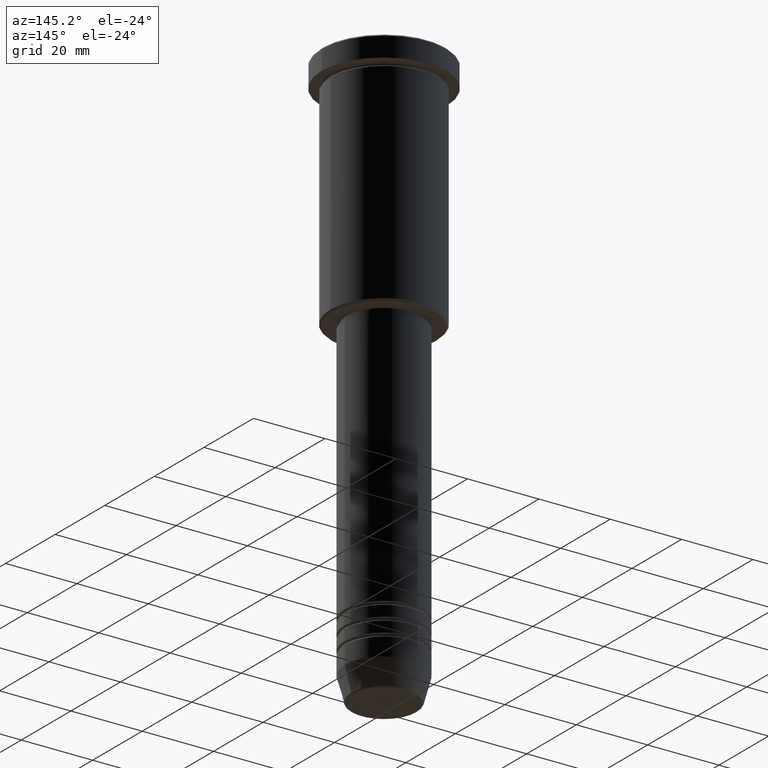
[diagram: clean part render]
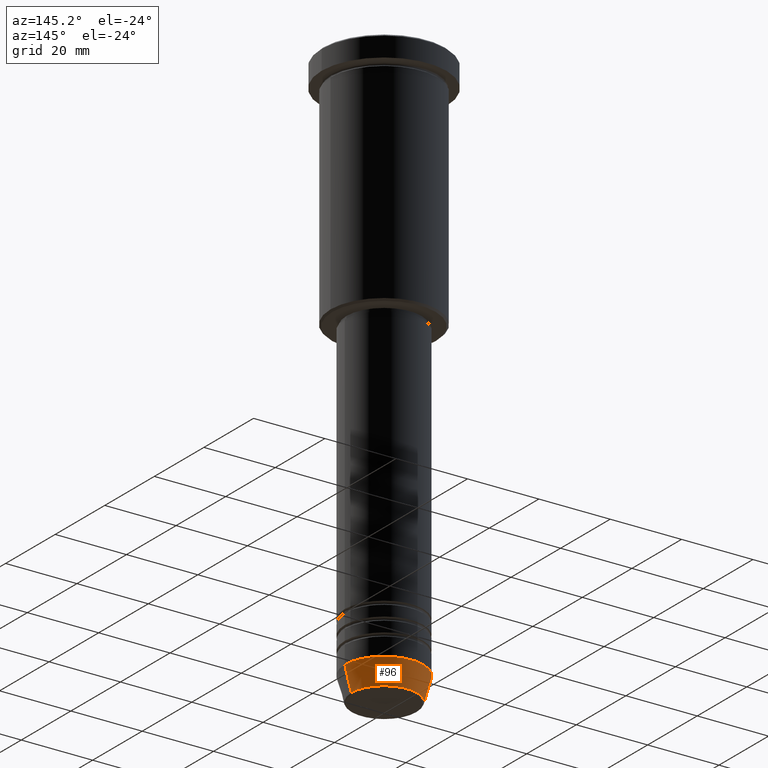
[diagram: same view with one face highlighted and labeled with its STEP entity id]
A machine part, auxiliary view. The second image highlights one B-rep face of the part: STEP entity #96.
In plain terms, the highlighted conical surface has half-angle 15 deg.
Its self-contained STEP definition (entity closure, byte-faithful):
#44 = ORIENTED_EDGE ( 'NONE', *, *, #913, .F. ) ;
#96 = ADVANCED_FACE ( 'NONE', ( #477 ), #171, .T. ) ;
#115 = VERTEX_POINT ( 'NONE', #926 ) ;
#171 = CONICAL_SURFACE ( 'NONE', #1028, 11.00000000000000000, 0.2617993877991500740 ) ;
#231 = LINE ( 'NONE', #586, #991 ) ;
#240 = AXIS2_PLACEMENT_3D ( 'NONE', #553, #643, #1102 ) ;
#259 = CARTESIAN_POINT ( 'NONE',  ( 11.00000000000000000, 0.000000000000000000, -154.0000000000000284 ) ) ;
#278 = ORIENTED_EDGE ( 'NONE', *, *, #515, .T. ) ;
#297 = CARTESIAN_POINT ( 'NONE',  ( -9.223655072137189492, 1.238341722557647202E-15, -160.6294095225512706 ) ) ;
#329 = CARTESIAN_POINT ( 'NONE',  ( 0.000000000000000000, 0.000000000000000000, -154.0000000000000284 ) ) ;
#369 = EDGE_CURVE ( 'NONE', #729, #598, #433, .T. ) ;
#433 = LINE ( 'NONE', #259, #1159 ) ;
#441 = CIRCLE ( 'NONE', #1145, 11.00000000000000000 ) ;
#448 = CIRCLE ( 'NONE', #240, 9.223655072137189492 ) ;
#477 = FACE_OUTER_BOUND ( 'NONE', #667, .T. ) ;
#493 = VERTEX_POINT ( 'NONE', #297 ) ;
#508 = ORIENTED_EDGE ( 'NONE', *, *, #927, .T. ) ;
#515 = EDGE_CURVE ( 'NONE', #729, #493, #448, .T. ) ;
#540 = DIRECTION ( 'NONE',  ( 0.2588190451025213501, 0.000000000000000000, 0.9659258262890680902 ) ) ;
#553 = CARTESIAN_POINT ( 'NONE',  ( 0.000000000000000000, 0.000000000000000000, -160.6294095225512706 ) ) ;
#565 = DIRECTION ( 'NONE',  ( -0.000000000000000000, -0.000000000000000000, 1.000000000000000000 ) ) ;
#586 = CARTESIAN_POINT ( 'NONE',  ( -11.00000000000000000, 1.347111479062088405E-15, -154.0000000000000284 ) ) ;
#598 = VERTEX_POINT ( 'NONE', #830 ) ;
#643 = DIRECTION ( 'NONE',  ( -0.000000000000000000, -0.000000000000000000, 1.000000000000000000 ) ) ;
#667 = EDGE_LOOP ( 'NONE', ( #278, #508, #44, #1169 ) ) ;
#670 = CARTESIAN_POINT ( 'NONE',  ( 0.000000000000000000, 0.000000000000000000, -154.0000000000000284 ) ) ;
#727 = CARTESIAN_POINT ( 'NONE',  ( 9.223655072137189492, 0.000000000000000000, -160.6294095225512706 ) ) ;
#729 = VERTEX_POINT ( 'NONE', #727 ) ;
#830 = CARTESIAN_POINT ( 'NONE',  ( 11.00000000000000000, 0.000000000000000000, -154.0000000000000284 ) ) ;
#868 = DIRECTION ( 'NONE',  ( -0.2588190451025213501, 3.169619151431772337E-17, 0.9659258262890680902 ) ) ;
#913 = EDGE_CURVE ( 'NONE', #598, #115, #441, .T. ) ;
#926 = CARTESIAN_POINT ( 'NONE',  ( -11.00000000000000000, 1.347111479062088405E-15, -154.0000000000000284 ) ) ;
#927 = EDGE_CURVE ( 'NONE', #493, #115, #231, .T. ) ;
#991 = VECTOR ( 'NONE', #868, 1000.000000000000000 ) ;
#1028 = AXIS2_PLACEMENT_3D ( 'NONE', #670, #565, #1126 ) ;
#1041 = DIRECTION ( 'NONE',  ( -0.000000000000000000, -0.000000000000000000, 1.000000000000000000 ) ) ;
#1102 = DIRECTION ( 'NONE',  ( 1.000000000000000000, 0.000000000000000000, 0.000000000000000000 ) ) ;
#1126 = DIRECTION ( 'NONE',  ( 1.000000000000000000, 0.000000000000000000, 0.000000000000000000 ) ) ;
#1129 = DIRECTION ( 'NONE',  ( 1.000000000000000000, 0.000000000000000000, 0.000000000000000000 ) ) ;
#1145 = AXIS2_PLACEMENT_3D ( 'NONE', #329, #1041, #1129 ) ;
#1159 = VECTOR ( 'NONE', #540, 1000.000000000000000 ) ;
#1169 = ORIENTED_EDGE ( 'NONE', *, *, #369, .F. ) ;